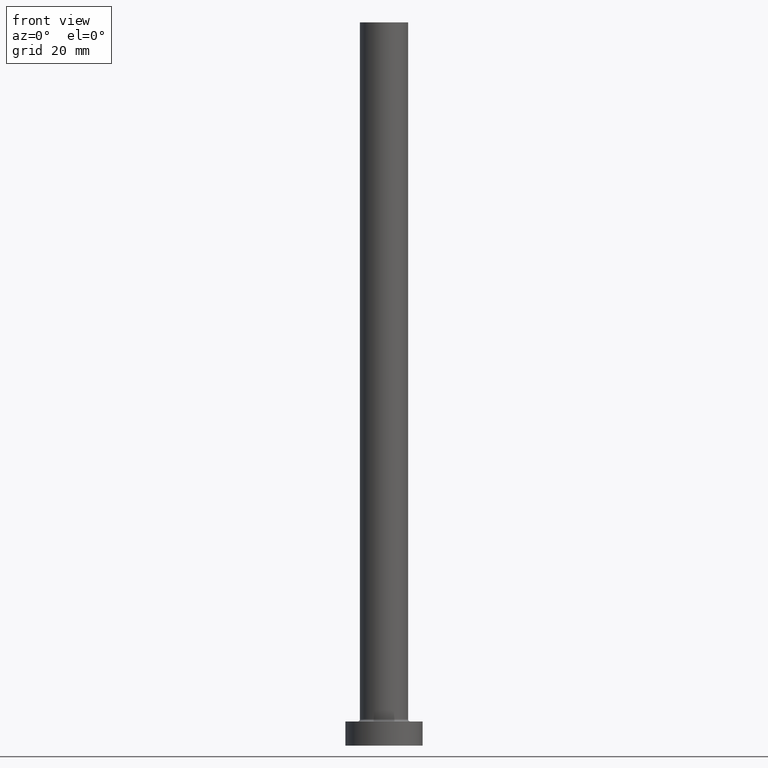
[diagram: clean part render]
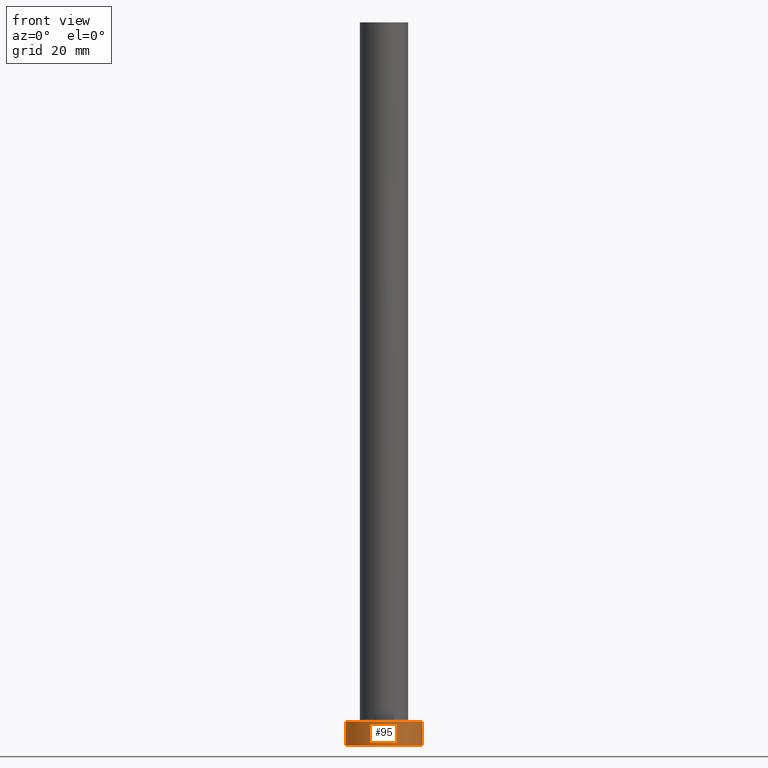
[diagram: same view with one face highlighted and labeled with its STEP entity id]
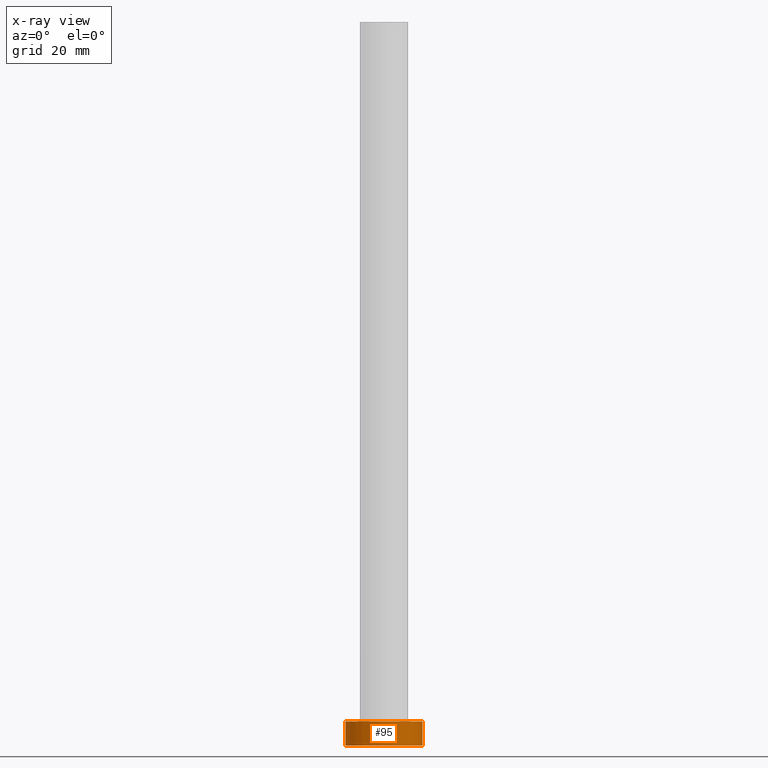
[diagram: x-ray of the same camera — body ghosted, the highlighted face saturated]
A machine part, front view. The second image highlights one B-rep face of the part: STEP entity #95.
The next image is the same camera in x-ray: the body ghosted, the highlighted face saturated — about 0% of this face is hidden behind the body in this view.
In plain terms, the highlighted cylindrical surface (partial cylindrical patch) has radius 8 mm, axis along (-0, -0, -1).
Its self-contained STEP definition (entity closure, byte-faithful):
#8 = CARTESIAN_POINT ( 'NONE',  ( 8.000000000000000000, 9.797174393178825657E-16, 5.000000000000000000 ) ) ;
#24 = ORIENTED_EDGE ( 'NONE', *, *, #99, .F. ) ;
#32 = DIRECTION ( 'NONE',  ( 0.000000000000000000, 0.000000000000000000, 1.000000000000000000 ) ) ;
#36 = LINE ( 'NONE', #279, #174 ) ;
#37 = CIRCLE ( 'NONE', #259, 8.000000000000000000 ) ;
#50 = ORIENTED_EDGE ( 'NONE', *, *, #70, .F. ) ;
#61 = EDGE_CURVE ( 'NONE', #232, #127, #37, .T. ) ;
#70 = EDGE_CURVE ( 'NONE', #143, #127, #36, .T. ) ;
#71 = AXIS2_PLACEMENT_3D ( 'NONE', #189, #73, #348 ) ;
#73 = DIRECTION ( 'NONE',  ( -0.000000000000000000, -0.000000000000000000, -1.000000000000000000 ) ) ;
#95 = ADVANCED_FACE ( 'NONE', ( #419 ), #282, .T. ) ;
#99 = EDGE_CURVE ( 'NONE', #461, #143, #298, .T. ) ;
#127 = VERTEX_POINT ( 'NONE', #316 ) ;
#143 = VERTEX_POINT ( 'NONE', #8 ) ;
#144 = EDGE_CURVE ( 'NONE', #461, #232, #319, .T. ) ;
#151 = DIRECTION ( 'NONE',  ( 1.000000000000000000, 0.000000000000000000, 0.000000000000000000 ) ) ;
#153 = DIRECTION ( 'NONE',  ( -0.000000000000000000, -0.000000000000000000, -1.000000000000000000 ) ) ;
#174 = VECTOR ( 'NONE', #307, 1000.000000000000000 ) ;
#178 = DIRECTION ( 'NONE',  ( 1.000000000000000000, 0.000000000000000000, 0.000000000000000000 ) ) ;
#189 = CARTESIAN_POINT ( 'NONE',  ( 0.000000000000000000, 0.000000000000000000, 5.000000000000000000 ) ) ;
#190 = CARTESIAN_POINT ( 'NONE',  ( -8.000000000000000000, 0.000000000000000000, 5.000000000000000000 ) ) ;
#212 = CARTESIAN_POINT ( 'NONE',  ( -8.000000000000000000, 0.000000000000000000, 0.000000000000000000 ) ) ;
#221 = AXIS2_PLACEMENT_3D ( 'NONE', #317, #32, #178 ) ;
#232 = VERTEX_POINT ( 'NONE', #212 ) ;
#259 = AXIS2_PLACEMENT_3D ( 'NONE', #455, #426, #151 ) ;
#279 = CARTESIAN_POINT ( 'NONE',  ( 8.000000000000000000, 9.797174393178825657E-16, 5.000000000000000000 ) ) ;
#282 = CYLINDRICAL_SURFACE ( 'NONE', #71, 8.000000000000000000 ) ;
#285 = CARTESIAN_POINT ( 'NONE',  ( -8.000000000000000000, 0.000000000000000000, 5.000000000000000000 ) ) ;
#298 = CIRCLE ( 'NONE', #221, 8.000000000000000000 ) ;
#307 = DIRECTION ( 'NONE',  ( -0.000000000000000000, -0.000000000000000000, -1.000000000000000000 ) ) ;
#316 = CARTESIAN_POINT ( 'NONE',  ( 8.000000000000000000, 9.797174393178825657E-16, 0.000000000000000000 ) ) ;
#317 = CARTESIAN_POINT ( 'NONE',  ( 0.000000000000000000, 0.000000000000000000, 5.000000000000000000 ) ) ;
#319 = LINE ( 'NONE', #285, #330 ) ;
#330 = VECTOR ( 'NONE', #153, 1000.000000000000000 ) ;
#348 = DIRECTION ( 'NONE',  ( -1.000000000000000000, 0.000000000000000000, 0.000000000000000000 ) ) ;
#384 = ORIENTED_EDGE ( 'NONE', *, *, #61, .T. ) ;
#419 = FACE_OUTER_BOUND ( 'NONE', #424, .T. ) ;
#424 = EDGE_LOOP ( 'NONE', ( #50, #24, #460, #384 ) ) ;
#426 = DIRECTION ( 'NONE',  ( 0.000000000000000000, 0.000000000000000000, 1.000000000000000000 ) ) ;
#455 = CARTESIAN_POINT ( 'NONE',  ( 0.000000000000000000, 0.000000000000000000, 0.000000000000000000 ) ) ;
#460 = ORIENTED_EDGE ( 'NONE', *, *, #144, .T. ) ;
#461 = VERTEX_POINT ( 'NONE', #190 ) ;